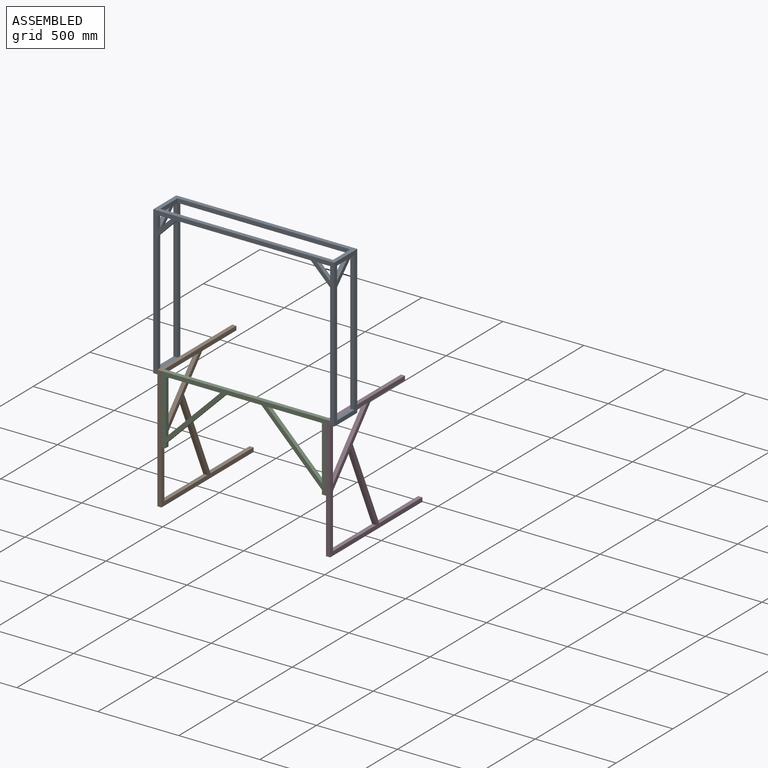
[diagram: assembled view]
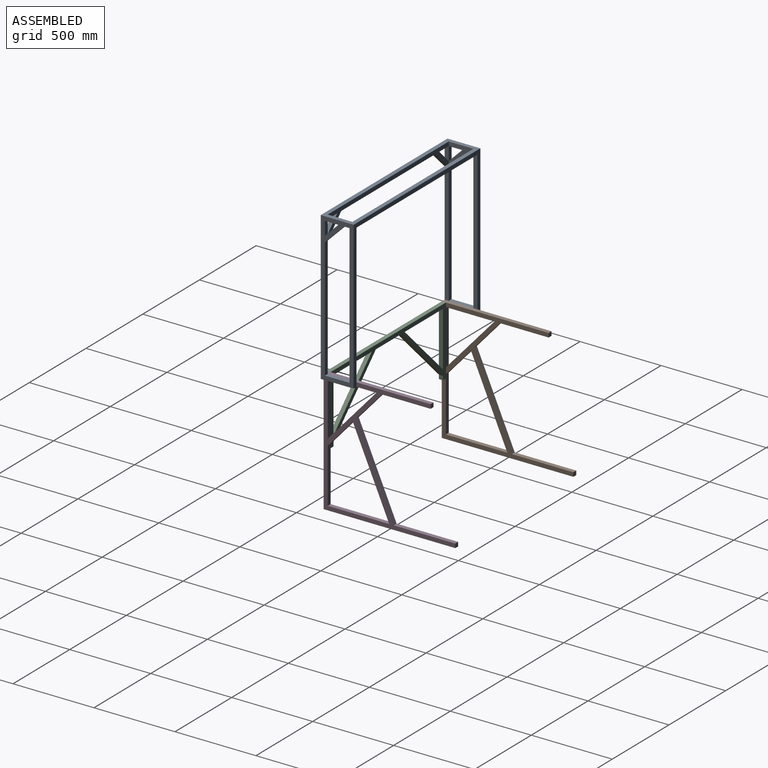
[diagram: assembled view, second angle]
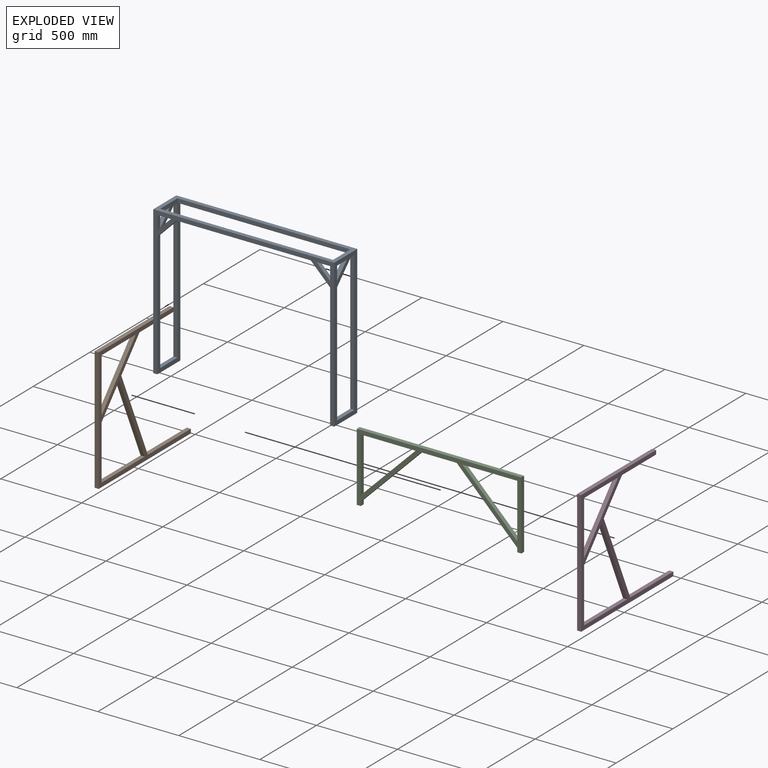
[diagram: exploded view]
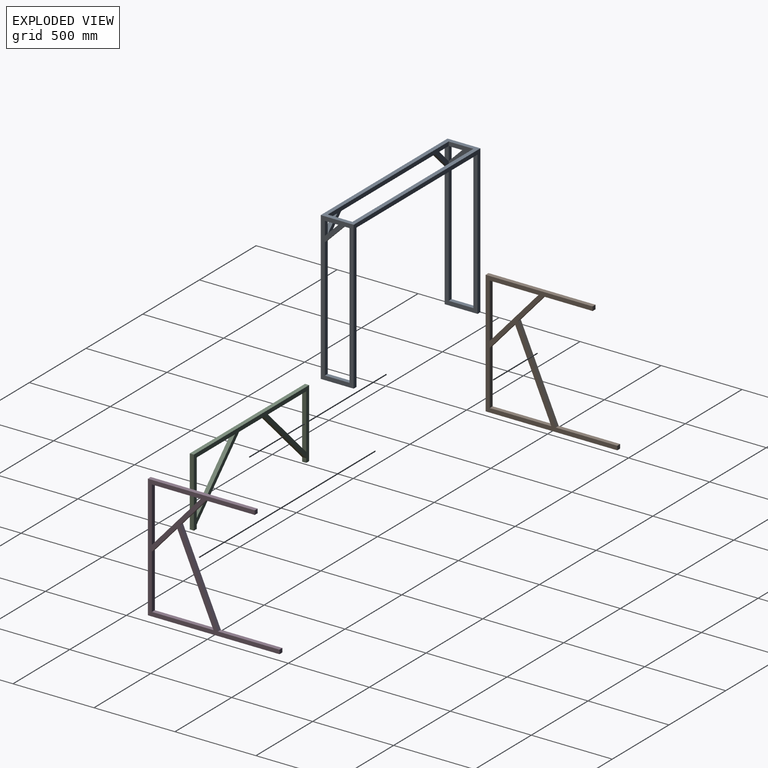
[diagram: exploded view, second angle]
ASSEMBLY  parts=4 mates=3
PART A: 39 faces, bbox 1117.6x203.2x914.4 mm
  f0: plane 744.04x25.4mm, normal (0,-1,0), area 18898.6mm2, adj f10,f14,f16,f37
  f1: plane 83.64x25.4mm, normal (0,-1,0), area 2124.4mm2, adj f9,f16,f25,f38
  f2: plane 32.84x25.4mm, normal (0,0,-1), area 834.1mm2, adj f8,f16,f34,f37
  f3: plane 32.84x25.4mm, normal (0,0,-1), area 834.1mm2, adj f7,f18,f31,f35
  f4: plane 83.64x25.4mm, normal (0,-1,0), area 2124.4mm2, adj f6,f18,f23,f36
  f5: plane 1066.8x144.96mm, normal (0,-1,0), area 34395.9mm2, adj f7,f8,f12,f13,f17,f21,f22,f24
  f6: plane 83.64x25.4mm, normal (0,0,-1), area 2124.4mm2, adj f4,f7,f18,f36
  f7: plane 152.4x144.96mm, normal (1,0,0), area 7520.5mm2, adj f3,f5,f6,f17,f32,f35,f36
  f8: plane 152.4x144.96mm, normal (-1,0,0), area 7520.5mm2, adj f2,f5,f9,f17,f32,f37,f38
  f9: plane 83.64x25.4mm, normal (0,0,-1), area 2124.4mm2, adj f1,f8,f16,f38
  f10: plane 152.4x25.4mm, normal (0,0,1), area 3871mm2, adj f0,f14,f16,f34
  f11: plane 152.4x25.4mm, normal (0,0,1), area 3871mm2, adj f18,f20,f28,f31
  f12: plane 83.64x83.64mm, normal (0.71,0,0.71), area 3004.4mm2, adj f5,f13,f25,f29
  f13: plane 83.64x25.4mm, normal (0,0,-1), area 2124.4mm2, adj f5,f12,f25,f29
  f14: plane 889x203.2mm, normal (-1,0,0), area 45995.3mm2, adj f0,f10,f15,f26,f29,f30,f33,f34
  f15: plane 203.2x25.4mm, normal (0,0,-1), area 5161.3mm2, adj f14,f16,f29,f30
  f16: plane 914.4x203.2mm, normal (1,0,0), area 57843mm2, adj f0,f1,f2,f9,f10,f15,f17,f29
  f17: plane 1117.6x203.2mm, normal (0,0,1), area 64516mm2, adj f5,f7,f8,f16,f18,f29,f30,f32
  f18: plane 914.4x203.2mm, normal (-1,0,0), area 57843mm2, adj f3,f4,f6,f11,f17,f19,f28,f29
  f19: plane 203.2x25.4mm, normal (0,0,-1), area 5161.3mm2, adj f18,f20,f29,f30
  f20: plane 889x203.2mm, normal (1,0,0), area 45995.3mm2, adj f11,f19,f21,f28,f29,f30,f31,f33
  f21: plane 119.56x119.56mm, normal (0.71,0,-0.71), area 4294.7mm2, adj f5,f20,f22,f29
  f22: plane 827.68x25.4mm, normal (0,0,-1), area 21023mm2, adj f5,f21,f26,f29
  f23: plane 83.64x25.4mm, normal (1,0,0), area 2124.4mm2, adj f4,f24,f27,f29
  f24: plane 83.64x25.4mm, normal (0,0,-1), area 2124.4mm2, adj f5,f23,f27,f29
  f25: plane 83.64x25.4mm, normal (-1,0,0), area 2124.4mm2, adj f1,f12,f13,f29
  f26: plane 119.56x119.56mm, normal (-0.71,0,-0.71), area 4294.7mm2, adj f5,f14,f22,f29
  f27: plane 83.64x83.64mm, normal (-0.71,0,0.71), area 3004.4mm2, adj f5,f23,f24,f29
  f28: plane 744.04x25.4mm, normal (0,-1,0), area 18898.6mm2, adj f11,f18,f20,f35
  f29: plane 1117.6x914.4mm, normal (0,1,0), area 80847.4mm2, adj f12,f13,f14,f15,f16,f17,f18,f19
  f30: plane 1117.6x914.4mm, normal (0,-1,0), area 73548.2mm2, adj f14,f15,f16,f17,f18,f19,f20,f33
  f31: plane 863.6x25.4mm, normal (0,1,0), area 21935.4mm2, adj f3,f11,f18,f20
  f32: plane 1066.8x25.4mm, normal (0,1,0), area 27096.7mm2, adj f7,f8,f17,f33
  f33: plane 1066.8x25.4mm, normal (0,0,-1), area 27096.7mm2, adj f14,f20,f30,f32
  f34: plane 863.6x25.4mm, normal (0,1,0), area 21935.4mm2, adj f2,f10,f14,f16
  f35: plane 119.56x119.56mm, normal (0,-0.71,-0.71), area 4294.7mm2, adj f3,f7,f18,f28
  f36: plane 83.64x83.64mm, normal (0,0.71,0.71), area 3004.4mm2, adj f4,f6,f7,f18
  f37: plane 119.56x119.56mm, normal (0,-0.71,-0.71), area 4294.7mm2, adj f0,f2,f8,f16
  f38: plane 83.64x83.64mm, normal (0,0.71,0.71), area 3004.4mm2, adj f1,f8,f9,f16
PART B: 18 faces, bbox 25.4x812.8x762 mm
  f0: plane 379.82x25.4mm, normal (0,0,1), area 9647.5mm2, adj f1,f15,f16,f17
  f1: plane 25.4x25.4mm, normal (0,-1,0), area 645.2mm2, adj f0,f2,f16,f17
  f2: plane 812.8x25.4mm, normal (0,0,-1), area 20645.1mm2, adj f1,f3,f16,f17
  f3: plane 762x25.4mm, normal (0,1,0), area 19354.8mm2, adj f2,f4,f16,f17
  f4: plane 660.4x25.4mm, normal (0,0,1), area 16774.2mm2, adj f3,f5,f16,f17
  f5: plane 25.4x25.4mm, normal (0,-1,0), area 645.2mm2, adj f4,f6,f16,f17
  f6: plane 300.47x25.4mm, normal (0,0,-1), area 7632.1mm2, adj f5,f7,f16,f17
  f7: plane 180.16x160.86mm, normal (0,-0.75,-0.67), area 6134.7mm2, adj f6,f15,f16,f17
  f8: plane 336.53x25.4mm, normal (0,-1,0), area 8547.9mm2, adj f9,f14,f16,f17
  f9: plane 336.53x300.47mm, normal (0,0.75,0.67), area 11459.3mm2, adj f8,f14,f16,f17
  f10: plane 379.82x25.4mm, normal (0,0,1), area 9647.5mm2, adj f11,f13,f16,f17
  f11: plane 510.22x224.74mm, normal (0,0.92,-0.4), area 14161.2mm2, adj f10,f12,f16,f17
  f12: plane 173.69x155.08mm, normal (0,-0.75,-0.67), area 5914.4mm2, adj f11,f13,f16,f17
  f13: plane 336.53x25.4mm, normal (0,-1,0), area 8547.9mm2, adj f10,f12,f16,f17
  f14: plane 300.47x25.4mm, normal (0,0,-1), area 7632.1mm2, adj f8,f9,f16,f17
  f15: plane 531.04x233.91mm, normal (0,-0.92,0.4), area 14738.9mm2, adj f0,f7,f16,f17
  f16: plane 812.8x762mm, normal (1,0,0), area 82042.4mm2, adj f0,f1,f2,f3,f4,f5,f6,f7
  f17: plane 812.8x762mm, normal (-1,0,0), area 82042.4mm2, adj f0,f1,f2,f3,f4,f5,f6,f7
PART C: 18 faces, bbox 1016x25.4x424.4 mm
  f0: plane 337.64x337.64mm, normal (-0.71,0,0.71), area 12128.4mm2, adj f1,f13,f16,f17
  f1: plane 337.64x25.4mm, normal (1,0,0), area 8576mm2, adj f0,f13,f16,f17
  f2: plane 424.36x25.4mm, normal (1,0,0), area 10778.8mm2, adj f3,f14,f16,f17
  f3: plane 1016x25.4mm, normal (0,0,1), area 25806.4mm2, adj f2,f4,f16,f17
  f4: plane 424.36x25.4mm, normal (-1,0,0), area 10778.8mm2, adj f3,f5,f16,f17
  f5: plane 25.4x25.4mm, normal (0,0,-1), area 645.2mm2, adj f4,f6,f16,f17
  f6: plane 25.4x25.4mm, normal (1,0,0), area 645.2mm2, adj f5,f7,f16,f17
  f7: plane 373.56x373.56mm, normal (0.71,0,-0.71), area 13418.7mm2, adj f6,f8,f16,f17
  f8: plane 218.08x25.4mm, normal (0,0,-1), area 5539.2mm2, adj f7,f9,f16,f17
  f9: plane 373.56x373.56mm, normal (-0.71,0,-0.71), area 13418.7mm2, adj f8,f10,f16,f17
  f10: plane 25.4x25.4mm, normal (-1,0,0), area 645.2mm2, adj f9,f14,f16,f17
  f11: plane 337.64x25.4mm, normal (0,0,-1), area 8576mm2, adj f12,f15,f16,f17
  f12: plane 337.64x25.4mm, normal (-1,0,0), area 8576mm2, adj f11,f15,f16,f17
  f13: plane 337.64x25.4mm, normal (0,0,-1), area 8576mm2, adj f0,f1,f16,f17
  f14: plane 25.4x25.4mm, normal (0,0,-1), area 645.2mm2, adj f2,f10,f16,f17
  f15: plane 337.64x337.64mm, normal (0.71,0,0.71), area 12128.4mm2, adj f11,f12,f16,f17
  f16: plane 1016x424.36mm, normal (0,-1,0), area 71620.6mm2, adj f0,f1,f2,f3,f4,f5,f6,f7
  f17: plane 1016x424.36mm, normal (0,1,0), area 71620.6mm2, adj f0,f1,f2,f3,f4,f5,f6,f7
PART D: same geometry as B
PLACE A rot(axis=(0,0,-1),180deg) t=(-55.91,-871.6,248.26)mm
PLACE B rot(axis=(0,0,-1),180deg) t=(-1097.31,-871.6,-488.34)mm
PLACE C t=(-1097.31,-846.2,-488.34)mm
PLACE D rot(axis=(0,0,1),180deg) t=(-55.91,-871.6,-488.34)mm
MATE fastened C.f4 <-> B.f17  axis (-1,0,0) through (-1097.31,-871.6,273.66)mm
MATE fastened D.f16 <-> C.f2  axis (1,0,0) through (-81.31,-871.6,273.66)mm
MATE fastened A.f20 <-> D.f17  axis (-1,0,0) through (-55.91,-871.6,273.66)mm
